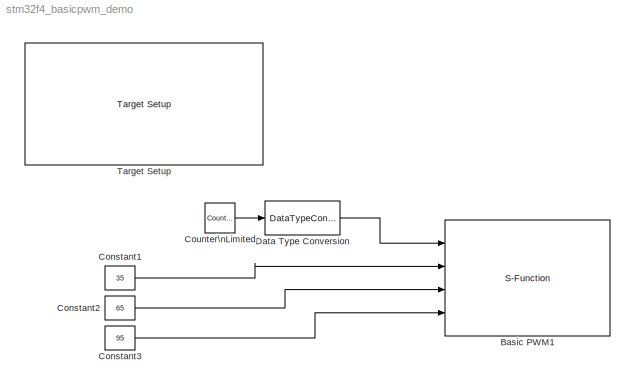
MODEL stm32f4_basicpwm_demo
KIND model
CONFIG PreLoadFcn = waijung.modelPreload; % Required for working with Waijung Blockset. Do not remove.
BLOCK [S-Function] Basic PWM1
  EnableBusSupport = off
  FunctionName = stm32f4_basicpwm
  MaskCallbackString = stm32f4_basicpwm_callback('timer');|stm32f4_basicpwm_callback('pwmperiod');|stm32f4_basicpwm_callback('polarity');||stm32f4_basicpwm_callback('ch1pin');|stm32f4_basicpwm_callback('ch2pin');|stm32f4_basicpwm_callback('ch3pin');|stm32f4_basicpwm_callback('ch4pin');|stm32f4_basicpwm_callback('sampletime');|stm32f4_basicpwm_callback('sampletimestr');|stm32f4_basicpwm_callback('blockid');||stm32f4_basi...<+48ch>
  MaskDescription = This block implements basic Edge-aligned Pulse Width Modulation (PWM) generation.\nAll timers are 16-bit. The PWM period is fixed (per timer).
  MaskDisplay = text(0.95, 0.5, 'Timer: 2\\nPolarity: Active High\\nPeriod (sec) 0.02\\nTs (sec): 0.1','ver','middle','hor','right');port_label('input', 1,'CH1 (A0)');port_label('input', 2,'CH2 (A1)');port_label('input', 3,'CH3 (A2)');port_label('input', 4,'CH4 (B11)')
  MaskEnableString = on,on,on,off,on,on,on,on,on,off,off,on,on,on,on,on,off,off,off,off,off,off
  MaskHelp = web(fullfile(waijungdocroot,'stm32f4_basicpwm.htm'),'-browser')
  MaskIconFrame = on
  MaskIconOpaque = on
  MaskIconRotate = none
  MaskIconUnits = normalized
  MaskInitialization = stm32f4_basicpwm_callback('init');
  MaskPortRotate = default
  MaskPromptString = Timer|PWM Period (seconds)|Polarity|Polaritystr|Channel 1|Channel 2|Channel 3|Channel 4|Sample time (sec)|Compiled sample time (sec) in string|BlockID|Port pin string|Enable custom port labels|Custom input port labels (Ex. In1, In2, In3)|Custom output port labels (Ex. Out1, Out2, Out3)|APB|Port string|Pin string|Pin matrix|Timer ARR|Timer PRESCALE|Channel order
  MaskSelfModifiable = on
  MaskStyleString = popup(1|2|3|4|5|8|9|10|11|12|13|14),edit,popup(Active High|Active Low),edit,popup(Not available - Do not use|A0|A5|A15),popup(Not available - Do not use|A1|B3),popup(Not available - Do not use|A2|B10),popup(Not available - Do not use|A3|B11),edit,edit,edit,edit,checkbox,edit,edit,edit,edit,edit,edit,edit,edit,edit
  MaskTabNameString = ,,,,,,,,,,,,,,,,,,,,,
  MaskToolTipString = on,on,on,on,on,on,on,on,on,on,on,on,on,on,on,on,on,on,on,on,on,on
  MaskTunableValueString = off,off,off,off,off,off,off,off,off,off,off,off,off,off,off,off,off,off,off,off,off,off
  MaskType = stm32f4_basicpwm
  MaskValueString = 2|0.02|Active High|TIM_OCPolarity_High|A0|A1|A2|B11|0.1|0.1|BasicPWM1|A0,A1,A2,B11|off|In1, In2, In3, In4|0|1|[\"A\",\"B\"]|[\"GPIO_Pin_0 \\| GPIO_Pin_1 \\| GPIO_Pin_2\",\"GPIO_Pin_11\"]|[3 0 1 2;1 11 0 0]|64614|25|[1  2  3  4]
  MaskVarAliasString = ,,,,,,,,,,,,,,,,,,,,,
  MaskVariables = timer=&1;pwmperiod=@2;polarity=&3;polaritystr=&4;ch1pin=&5;ch2pin=&6;ch3pin=&7;ch4pin=&8;sampletime=@9;sampletimestr=&10;blockid=&11;portpinstr=&12;enablecustomportlabel=@13;cinputportlabel=&14;coutputportlabel=&15;apb=&16;portstr=&17;pinstr=&18;pinmat=@19;timarr=&20;timprescale=&21;chmat=@22;
  MaskVisibilityString = on,on,on,off,on,on,on,on,on,off,off,off,on,off,off,off,off,off,off,off,off,off
  Parameters = timer,pwmperiod,ch1pin,ch2pin,ch3pin,ch4pin,sampletime,sampletimestr,blockid,apb,portstr,pinstr,pinmat,timarr,timprescale,chmat,polaritystr
  Ports = [4]
BLOCK [Constant] Constant1
  OutDataType = fixdt(1, 16)
  OutScaling = 2^0
  Value = 35
BLOCK [Constant] Constant2
  OutDataType = fixdt(1, 16)
  OutScaling = 2^0
  Value = 65
BLOCK [Constant] Constant3
  OutDataType = fixdt(1, 16)
  OutScaling = 2^0
  Value = 95
BLOCK [Reference] Counter\nLimited  REF=simulink/Sources/Counter\nLimited
  FunctionWithSeparateData = off
  Ports = [0, 1]
  RTWMemSecDataConstants = Inherit from model
  RTWMemSecDataInternal = Inherit from model
  RTWMemSecDataParameters = Inherit from model
  RTWMemSecFuncExecute = Inherit from model
  RTWMemSecFuncInitTerm = Inherit from model
  ShowPortLabels = FromPortIcon
  SourceBlock = simulink/Sources/Counter\nLimited
  SourceType = Counter Limited
  SystemSampleTime = -1
  tsamp = -1
  uplimit = 20
BLOCK [DataTypeConversion] Data Type Conversion
  OutDataType = fixdt(1, 16)
  OutScaling = 2^0
  RndMeth = Floor
  SaturateOnIntegerOverflow = off
BLOCK [Reference] Target Setup  REF=stm32f4_device_config_lib/Target Setup
  Ports = []
  Priority = 100
  SourceBlock = stm32f4_device_config_lib/Target Setup
  SourceType = stm32f4_target_setup
  assemblercontrolstr = $(patsubst %, -I%, .) -mcpu=cortex-m4 -mthumb -mthumb-interwork -mfloat-abi=hard -mfpu=fpv4-sp-d16 -ffast-math -Wall -Wextra -Ofast -Wa,-amhls=$(<:.s=.lst) -D__STACK_SIZE=$(STACK_SIZE) -D__HEAP_SIZE=$(HEAP_SIZE)
  blockid = TargetSetup
  clockconfig = HSEOSC-8MHz
  compiler = GNU ARM
  compilercontrolstr = $(patsubst %, -I%, .) -mcpu=cortex-m4 -mthumb -mthumb-interwork -mfloat-abi=hard -mfpu=fpv4-sp-d16 -ffast-math -Wall -Wextra -Ofast
  editctrlstr = on
  enableautocompiledownload = on
  execprofile = None
  flashlength = 1024k
  flashorigin = 0x8000000
  fullchiperase = off
  hclk = 168000000
  heapsize = 0x200
  hseval = 8000000
  lastprofileruart = 3
  linkercontrolstr = -T$(LD_SCRIPT) -g -Wl,-Map=$(MAP),--cref,--no-warn-mismatch -mcpu=cortex-m4 -mthumb -mthumb-interwork -mfloat-abi=hard -mfpu=fpv4-sp-d16
  manualsetsampletime = off
  mcu = STM32F417IG (LQFP176)
  mcustr = STM32F417IG
  previous_compiler = GNU ARM
  profilerbaud = 115200
  profilerinitstr = 0.01,168000000,1680000,115200,0
  profilertxpin = D8
  profileruart = 3
  programmerinterface = ST-Link
  ramlength = 128k
  ramorigin = 0x20000000
  runafterdownload = on
  sampletime = 0.01
  showmemoryconfiguration = off
  stacksize = 0x400
  system_stm32f4xx_c_path = <path>
  systickreloadvalue = 1680000
  useextram = off
LINE Constant1:1 -> Basic PWM1:2
LINE Constant2:1 -> Basic PWM1:3
LINE Constant3:1 -> Basic PWM1:4
LINE Counter\nLimited:1 -> Data Type Conversion:1
LINE Data Type Conversion:1 -> Basic PWM1:1
note: 1 file-system path scrubbed to <path> (not preserved elsewhere — flat text is the only slx artifact)
